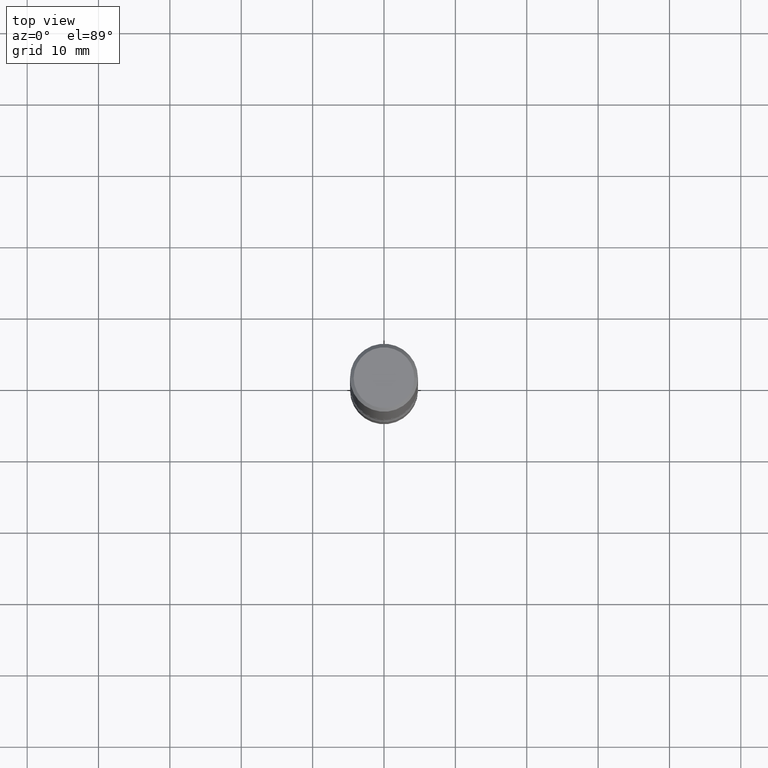
[diagram: clean part render]
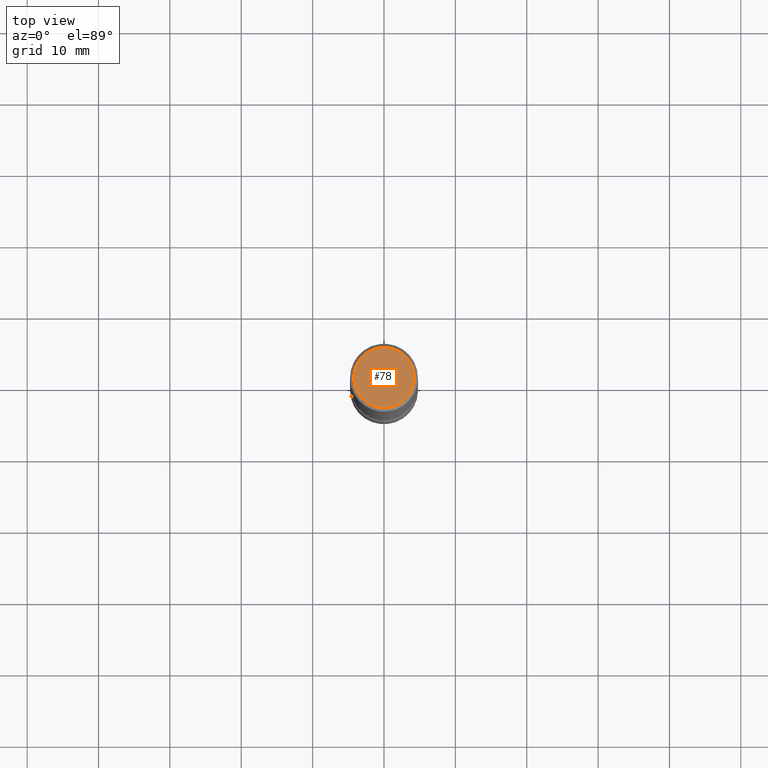
[diagram: same view with one face highlighted and labeled with its STEP entity id]
A machine part, top view. The second image highlights one B-rep face of the part: STEP entity #78.
In plain terms, the highlighted planar face has unit normal (0, -0, -1).
Its self-contained STEP definition (entity closure, byte-faithful):
#16 = CARTESIAN_POINT ( 'NONE',  ( 0.000000000000000000, 0.000000000000000000, 0.000000000000000000 ) ) ;
#37 = EDGE_LOOP ( 'NONE', ( #129, #319 ) ) ;
#78 = ADVANCED_FACE ( 'NONE', ( #216 ), #346, .F. ) ;
#129 = ORIENTED_EDGE ( 'NONE', *, *, #402, .T. ) ;
#139 = CARTESIAN_POINT ( 'NONE',  ( -0.1674999999999998990, 1.204561061900880061E-15, -8.301862719484106184E-30 ) ) ;
#168 = AXIS2_PLACEMENT_3D ( 'NONE', #16, #359, #331 ) ;
#189 = CARTESIAN_POINT ( 'NONE',  ( 0.1674999999999998990, -1.252653207992877500E-15, 8.469775550109235181E-30 ) ) ;
#216 = FACE_OUTER_BOUND ( 'NONE', #37, .T. ) ;
#236 = AXIS2_PLACEMENT_3D ( 'NONE', #350, #518, #299 ) ;
#299 = DIRECTION ( 'NONE',  ( -1.000000000000000000, 6.982962677686265922E-15, -4.876176775795935793E-29 ) ) ;
#313 = EDGE_CURVE ( 'NONE', #476, #557, #431, .T. ) ;
#319 = ORIENTED_EDGE ( 'NONE', *, *, #313, .T. ) ;
#331 = DIRECTION ( 'NONE',  ( 1.000000000000000000, -6.982962677686265922E-15, 4.876176775795935793E-29 ) ) ;
#346 = PLANE ( 'NONE',  #236 ) ;
#350 = CARTESIAN_POINT ( 'NONE',  ( 1.169646248512448806E-15, 0.1674999999999998990, -5.848231242562264739E-16 ) ) ;
#359 = DIRECTION ( 'NONE',  ( -2.445468806185136597E-29, 3.491481338843145583E-15, 1.000000000000000000 ) ) ;
#397 = DIRECTION ( 'NONE',  ( -2.445468806185136597E-29, 3.491481338843145583E-15, 1.000000000000000000 ) ) ;
#402 = EDGE_CURVE ( 'NONE', #557, #476, #469, .T. ) ;
#431 = CIRCLE ( 'NONE', #168, 0.1674999999999998990 ) ;
#469 = CIRCLE ( 'NONE', #475, 0.1674999999999998990 ) ;
#475 = AXIS2_PLACEMENT_3D ( 'NONE', #497, #397, #539 ) ;
#476 = VERTEX_POINT ( 'NONE', #189 ) ;
#497 = CARTESIAN_POINT ( 'NONE',  ( 0.000000000000000000, 0.000000000000000000, 0.000000000000000000 ) ) ;
#518 = DIRECTION ( 'NONE',  ( 2.438088387897960049E-29, -3.491481338843145188E-15, -1.000000000000000000 ) ) ;
#539 = DIRECTION ( 'NONE',  ( 1.000000000000000000, -6.982962677686265922E-15, 4.876176775795935793E-29 ) ) ;
#557 = VERTEX_POINT ( 'NONE', #139 ) ;